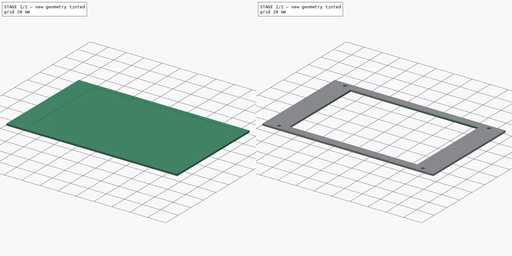
[diagram: build sequence overview — one tinted view per stage of 2, left to right]
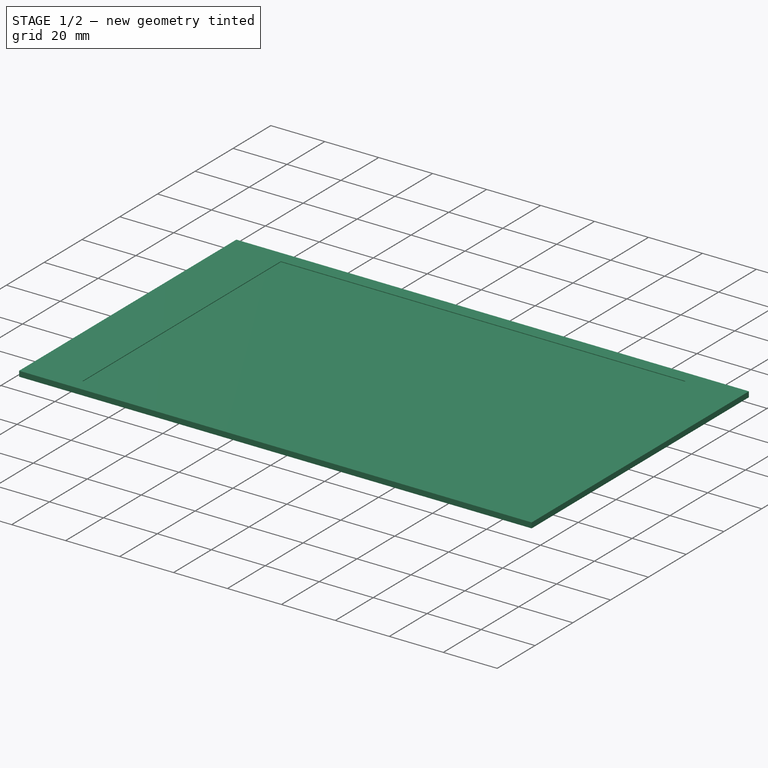
[diagram: stage 1 of 2 — iso view after this stage's code; geometry added in this stage tinted green]
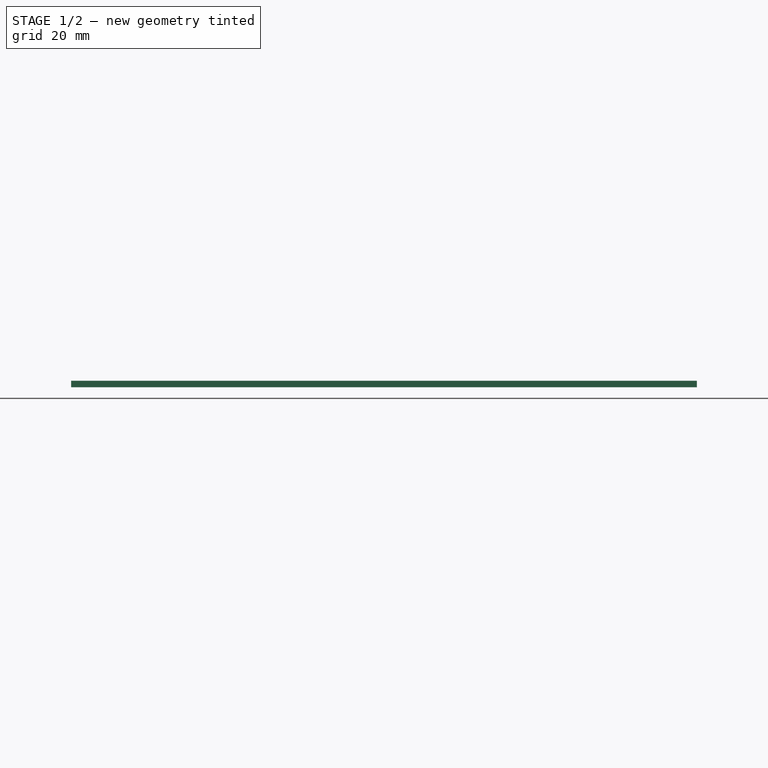
[diagram: stage 1 of 2 — front view after this stage's code; geometry added in this stage tinted green]
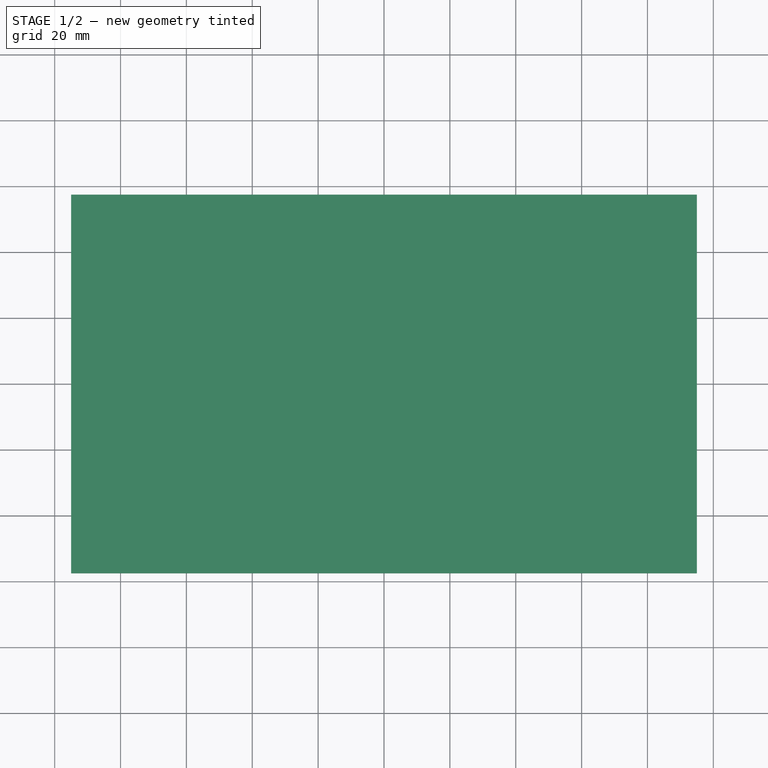
[diagram: stage 1 of 2 — top view after this stage's code; geometry added in this stage tinted green]
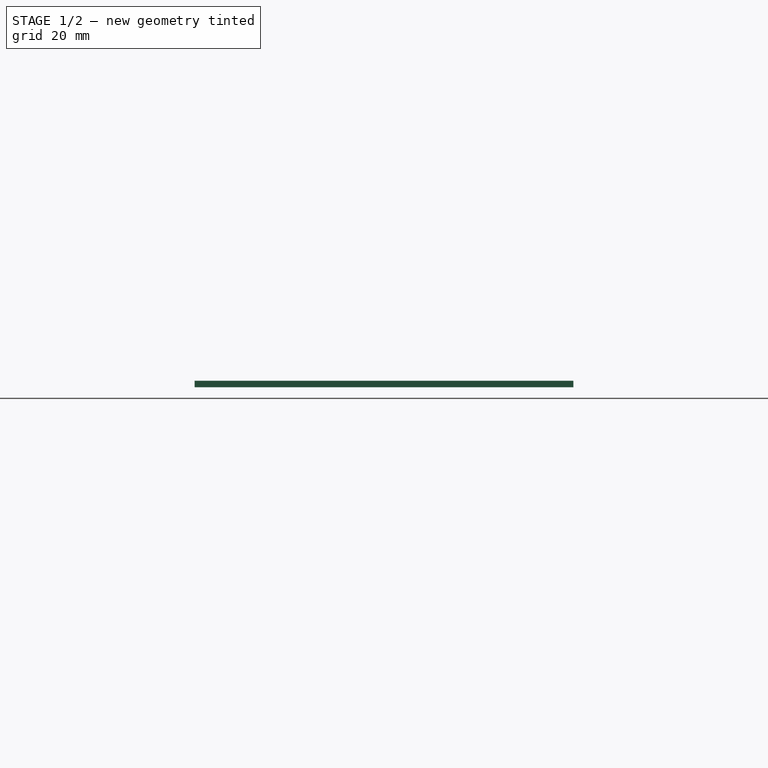
[diagram: stage 1 of 2 — right view after this stage's code; geometry added in this stage tinted green]
FCSTD DOCUMENT  (FreeCAD 1.0R39109 (Git))
Label: easel
License: All rights reserved
LicenseURL: http://en.wikipedia.org/wiki/All_rights_reserved
objects: Sketcher::SketchObject×4, PartDesign::Pad×3, PartDesign::Body×2, Spreadsheet::Sheet×1, PartDesign::Pocket×1, PartDesign::SubShapeBinder×1
note: 23 computed .brp shape members not serialized (recipe doc carries the construction recipe); baked Part::Feature solids carry a one-line shape summary decoded from their .brp

FEATURE [Sketcher::SketchObject] Sketch
  ArcFitTolerance = 1e-06
  AttachmentSupport = -> [XY_Plane]
  FullyConstrained = true
  MakeInternals = false
  MapMode = 5
  expr: Constraints[10] = <<dimensions>>.Width + 40 mm
  expr: Constraints[11] = <<dimensions>>.Height + 10 mm
  sketch-geometry (5):
    g0: LineSegment StartX=-95 StartY=57.5 StartZ=0 EndX=-95 EndY=-57.5 EndZ=0
    g1: LineSegment StartX=-95 StartY=-57.5 StartZ=0 EndX=95 EndY=-57.5 EndZ=0
    g2: LineSegment StartX=95 StartY=-57.5 StartZ=0 EndX=95 EndY=57.5 EndZ=0
    g3: LineSegment StartX=95 StartY=57.5 StartZ=0 EndX=-95 EndY=57.5 EndZ=0
    g4: GeomPoint [constr] X=0 Y=0 Z=0
  constraints (12):
    c: Coincident(g0,g1)
    c: Coincident(g1,g2)
    c: Coincident(g2,g3)
    c: Coincident(g3,g0)
    c: Vertical(g0)
    c: Vertical(g2)
    c: Horizontal(g1)
    c: Horizontal(g3)
    c: Symmetric(g2,g0,g4)
    c: Coincident(g4,g-1)
    c: DistanceX(g3,g3) = 190
    c: DistanceY(g2,g2) = 115
FEATURE [Spreadsheet::Sheet] Spreadsheet  label="dimensions"
  cells = A1='Width:; B1(Width)==150 mm; A2='Height:; B2(Height)==105 mm; A3='Margin:; B3(Margin)==4 mm; A4='Paper width:; B4(PaperWidth)==0.25 mm
FEATURE [PartDesign::Pad] Pad
  Direction = (0,0,1)
  Length = 2
  Length2 = 10
  Profile = -> Sketch
  ReferenceAxis = -> Sketch [N_Axis]
  Suppressed = false
  Type = 0
FEATURE [Sketcher::SketchObject] Sketch001
  ArcFitTolerance = 1e-06
  AttachmentSupport = -> [Pad]
  FullyConstrained = true
  MakeInternals = false
  MapMode = 5
  Placement = pos=(0,0,2) rot=(0,0,1;0rad)
  expr: Constraints[10] = <<dimensions>>.Width
  expr: Constraints[11] = <<dimensions>>.Height
  sketch-geometry (5):
    g0: LineSegment StartX=-75 StartY=52.5 StartZ=0 EndX=-75 EndY=-52.5 EndZ=0
    g1: LineSegment StartX=-75 StartY=-52.5 StartZ=0 EndX=75 EndY=-52.5 EndZ=0
    g2: LineSegment StartX=75 StartY=-52.5 StartZ=0 EndX=75 EndY=52.5 EndZ=0
    g3: LineSegment StartX=75 StartY=52.5 StartZ=0 EndX=-75 EndY=52.5 EndZ=0
    g4: GeomPoint [constr] X=0 Y=0 Z=0
  constraints (12):
    c: Coincident(g0,g1)
    c: Coincident(g1,g2)
    c: Coincident(g2,g3)
    c: Coincident(g3,g0)
    c: Vertical(g0)
    c: Vertical(g2)
    c: Horizontal(g1)
    c: Horizontal(g3)
    c: Symmetric(g2,g0,g4)
    c: Coincident(g4,g-1)
    c: DistanceX(g3,g3) = 150
    c: DistanceY(g2,g2) = 105
FEATURE [PartDesign::Pocket] Pocket
  BaseFeature = -> Pad
  Direction = (0,0,-1)
  Length = 0.25
  Length2 = 5
  Profile = -> Sketch001
  ReferenceAxis = -> Sketch001 [N_Axis]
  Suppressed = false
  Type = 0
  expr: Length = <<dimensions>>.PaperWidth
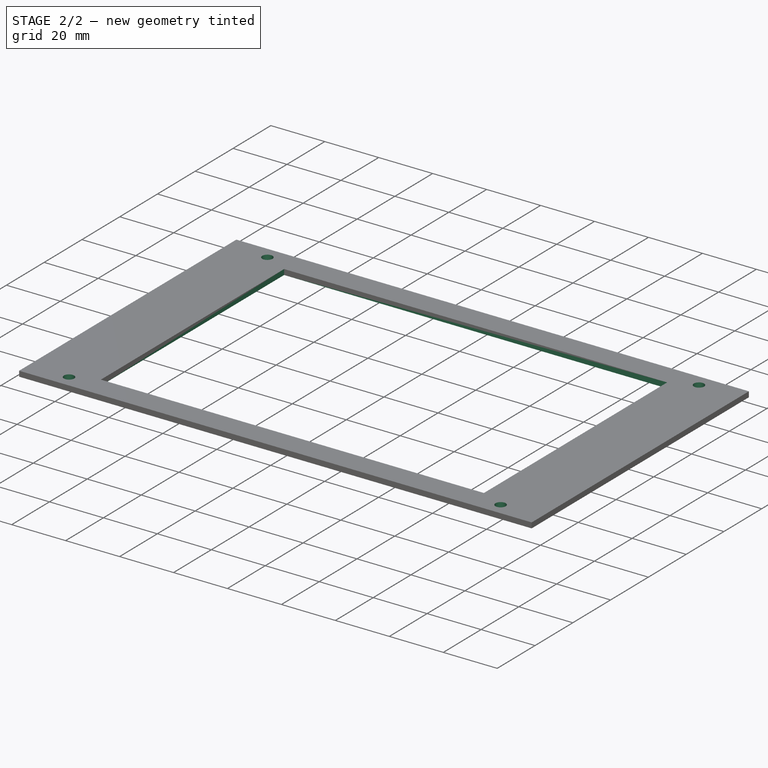
[diagram: stage 2 of 2 — iso view after this stage's code; geometry added in this stage tinted green]
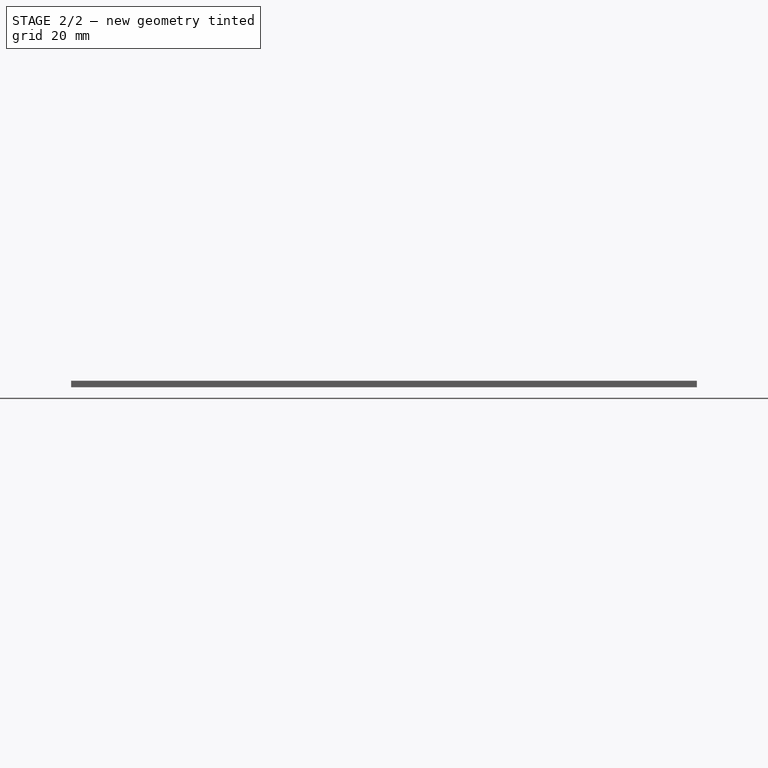
[diagram: stage 2 of 2 — front view after this stage's code; geometry added in this stage tinted green]
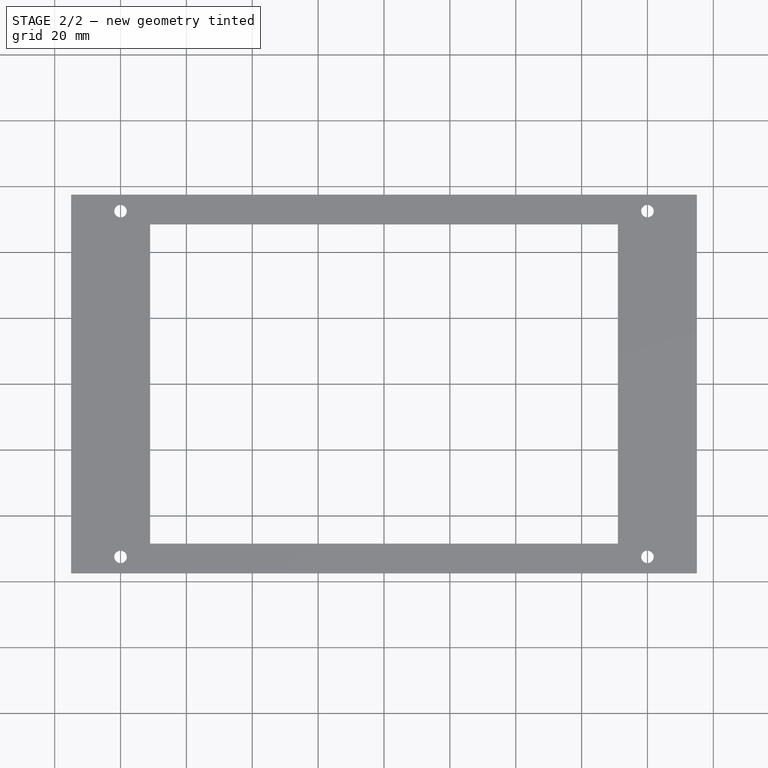
[diagram: stage 2 of 2 — top view after this stage's code; geometry added in this stage tinted green]
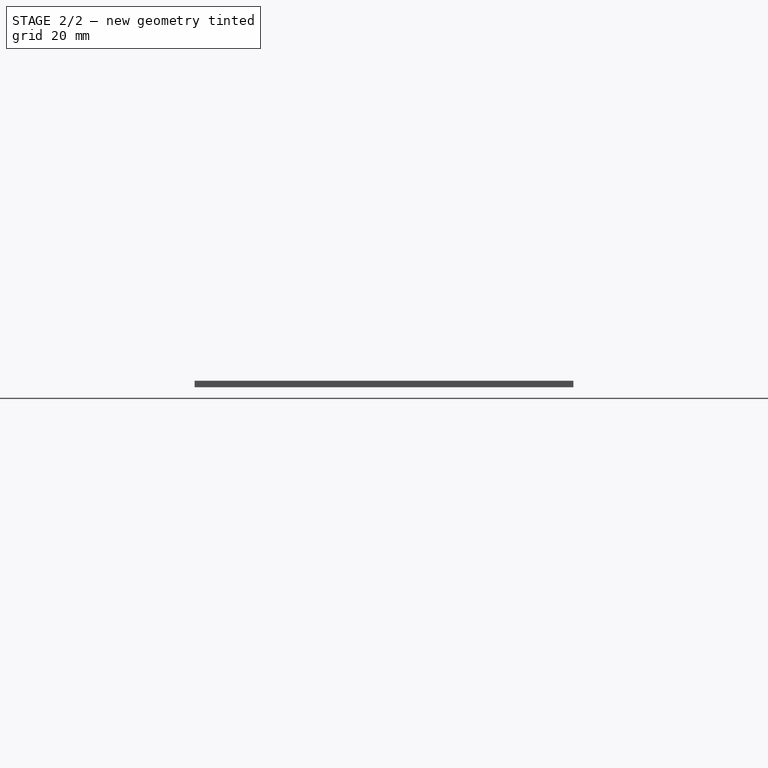
[diagram: stage 2 of 2 — right view after this stage's code; geometry added in this stage tinted green]
FEATURE [Sketcher::SketchObject] Sketch002
  ArcFitTolerance = 1e-06
  AttachmentSupport = -> [Pocket]
  ExternalGeometry = -> [Pocket]
  FullyConstrained = true
  MakeInternals = false
  MapMode = 5
  Placement = pos=(0,0,2) rot=(0,0,1;0rad)
  sketch-geometry (4):
    g0: Circle CenterX=-80 CenterY=52.5 CenterZ=0 NormalX=0 NormalY=0 NormalZ=1 AngleXU=0 Radius=2
    g1: Circle CenterX=80 CenterY=52.5 CenterZ=0 NormalX=0 NormalY=0 NormalZ=1 AngleXU=0 Radius=2
    g2: Circle CenterX=-80 CenterY=-52.5 CenterZ=0 NormalX=0 NormalY=0 NormalZ=1 AngleXU=0 Radius=2
    g3: Circle CenterX=80 CenterY=-52.5 CenterZ=0 NormalX=0 NormalY=0 NormalZ=1 AngleXU=0 Radius=2
  constraints (9):
    c: Diameter(g0) = 4
    c: Distance(g0,g-4) = 15
    c: Distance(g0,g-3) = 5
    c: Equal(g0,g1)
    c: Symmetric(g0,g1,g-2)
    c: Equal(g0,g2)
    c: Symmetric(g0,g2,g-1)
    c: Equal(g1,g3)
    c: Symmetric(g1,g3,g-1)
FEATURE [PartDesign::Pad] Pad001
  BaseFeature = -> Pocket
  Direction = (0,0,1)
  Length = 1
  Length2 = 10
  Profile = -> Sketch002
  ReferenceAxis = -> Sketch002 [N_Axis]
  Suppressed = false
  Type = 0
FEATURE [PartDesign::Body] Body  label="fixed-size-bottom"
  AllowCompound = false
  Group = -> [Sketch,Pad,Sketch001,Pocket,Sketch002,Pad001]
  Origin = -> Origin
  Tip = -> Pad001
FEATURE [PartDesign::SubShapeBinder] Binder
  BindCopyOnChange = 0
  BindMode = 0
  ClaimChildren = false
  Context = -> Body001 [Binder.]
  Fuse = false
  MakeFace = true
  OffsetFill = false
  OffsetIntersection = false
  OffsetJoinType = 0
  OffsetOpenResult = false
  PartialLoad = false
  Relative = true
  Support = -> [Body[Pad001.Face5]]
  _Version = 2
FEATURE [Sketcher::SketchObject] Sketch003
  ArcFitTolerance = 1e-06
  AttachmentSupport = -> [XY_Plane001]
  ExternalGeometry = -> [Binder]
  FullyConstrained = true
  MakeInternals = false
  MapMode = 5
  expr: Constraints[18] = <<dimensions>>.Margin
  expr: Constraints[19] = <<dimensions>>.Margin
  sketch-geometry (12):
    g0: LineSegment StartX=-95 StartY=57.5 StartZ=0 EndX=-95 EndY=-57.5 EndZ=0
    g1: LineSegment StartX=-95 StartY=-57.5 StartZ=0 EndX=95 EndY=-57.5 EndZ=0
    g2: LineSegment StartX=95 StartY=-57.5 StartZ=0 EndX=95 EndY=57.5 EndZ=0
    g3: LineSegment StartX=95 StartY=57.5 StartZ=0 EndX=-95 EndY=57.5 EndZ=0
    g4: LineSegment StartX=-71 StartY=48.5 StartZ=0 EndX=-71 EndY=-48.5 EndZ=0
    g5: LineSegment StartX=-71 StartY=-48.5 StartZ=0 EndX=71 EndY=-48.5 EndZ=0
    g6: LineSegment StartX=71 StartY=-48.5 StartZ=0 EndX=71 EndY=48.5 EndZ=0
    g7: LineSegment StartX=71 StartY=48.5 StartZ=0 EndX=-71 EndY=48.5 EndZ=0
    g8: Circle CenterX=-80 CenterY=52.5 CenterZ=0 NormalX=0 NormalY=0 NormalZ=1 AngleXU=0 Radius=1.9
    g9: Circle CenterX=80 CenterY=52.5 CenterZ=0 NormalX=0 NormalY=0 NormalZ=1 AngleXU=0 Radius=1.9
    g10: Circle CenterX=-80 CenterY=-52.5 CenterZ=0 NormalX=0 NormalY=0 NormalZ=1 AngleXU=0 Radius=1.9
    g11: Circle CenterX=80 CenterY=-52.5 CenterZ=0 NormalX=0 NormalY=0 NormalZ=1 AngleXU=0 Radius=1.9
  constraints (29):
    c: Coincident(g0,g1)
    c: Coincident(g1,g2)
    c: Coincident(g2,g3)
    c: Coincident(g3,g0)
    c: Vertical(g0)
    c: Vertical(g2)
    c: Horizontal(g1)
    c: Horizontal(g3)
    c: Coincident(g0,g-4)
    c: Coincident(g1,g-6)
    c: Coincident(g4,g5)
    c: Coincident(g5,g6)
    c: Coincident(g6,g7)
    c: Coincident(g7,g4)
    c: Vertical(g4)
    c: Vertical(g6)
    c: Horizontal(g5)
    c: Horizontal(g7)
    c: Distance(g-9,g4) = 4
    c: Distance(g-8,g7) = 4
    c: Symmetric(g4,g5,g-1)
    c: Coincident(g8,g-12)
    c: Distance(g-12,g8) = 0.1
    c: Equal(g8,g9)
    c: Symmetric(g8,g9,g-2)
    c: Equal(g8,g10)
    c: Symmetric(g8,g10,g-1)
    c: Equal(g9,g11)
    c: Symmetric(g9,g11,g-1)
FEATURE [PartDesign::Pad] Pad002
  Direction = (0,0,1)
  Length = 2
  Length2 = 10
  Profile = -> Sketch003
  ReferenceAxis = -> Sketch003 [N_Axis]
  Suppressed = false
  Type = 0
FEATURE [PartDesign::Body] Body001  label="fixed-size-top"
  AllowCompound = false
  Group = -> [Binder,Sketch003,Pad002]
  Origin = -> Origin001
  Tip = -> Pad002
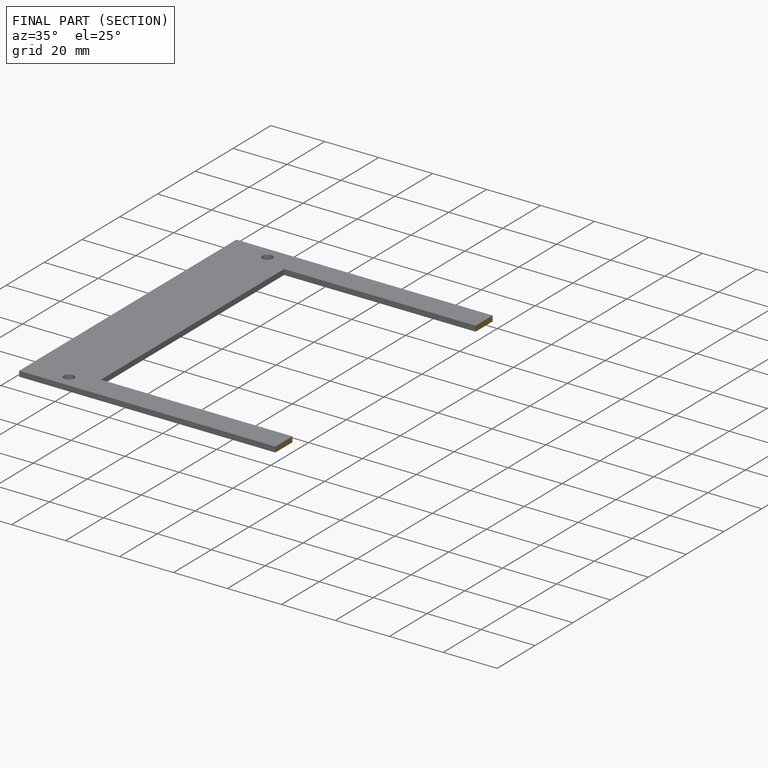
[diagram: finished part — half-section view (interior)]
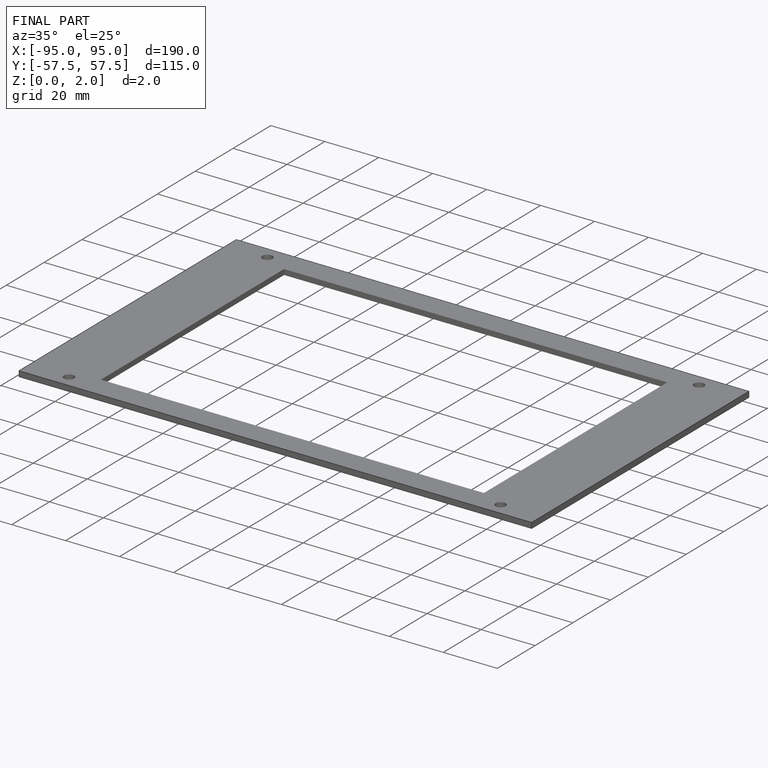
[diagram: finished part — iso view with bounding-box wireframe]
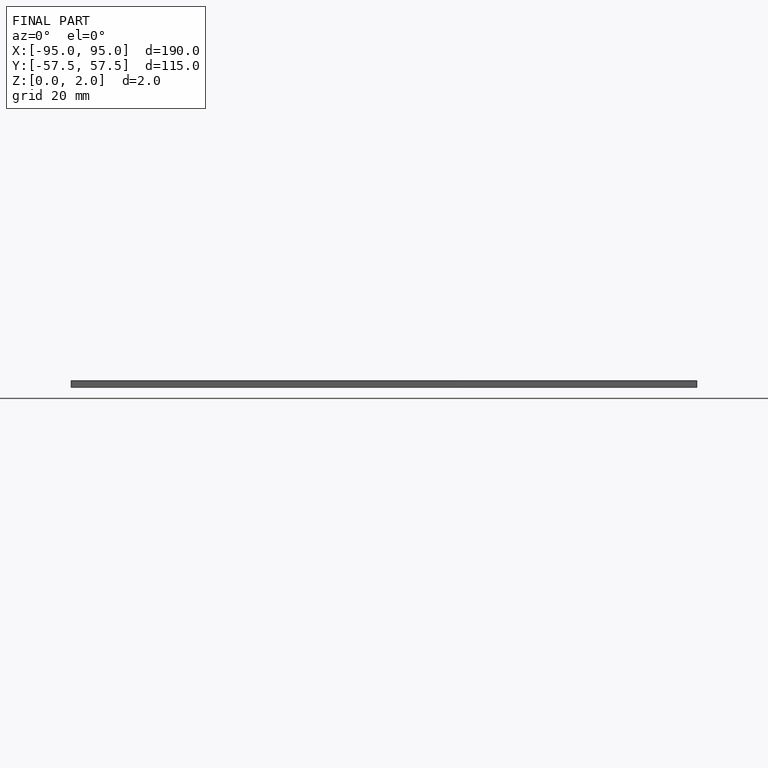
[diagram: finished part — front view with bounding-box wireframe]
